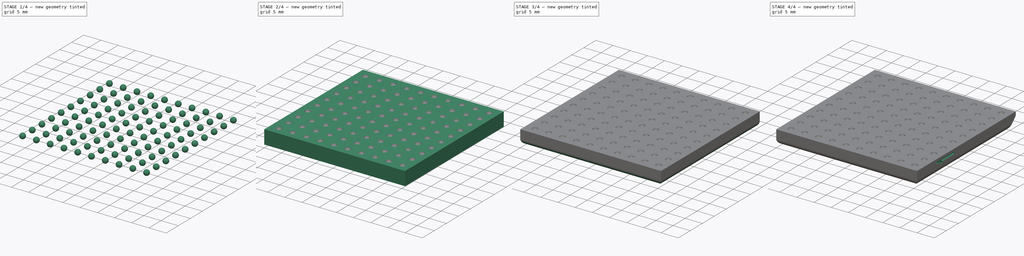
[diagram: build sequence overview — one tinted view per stage of 4, left to right]
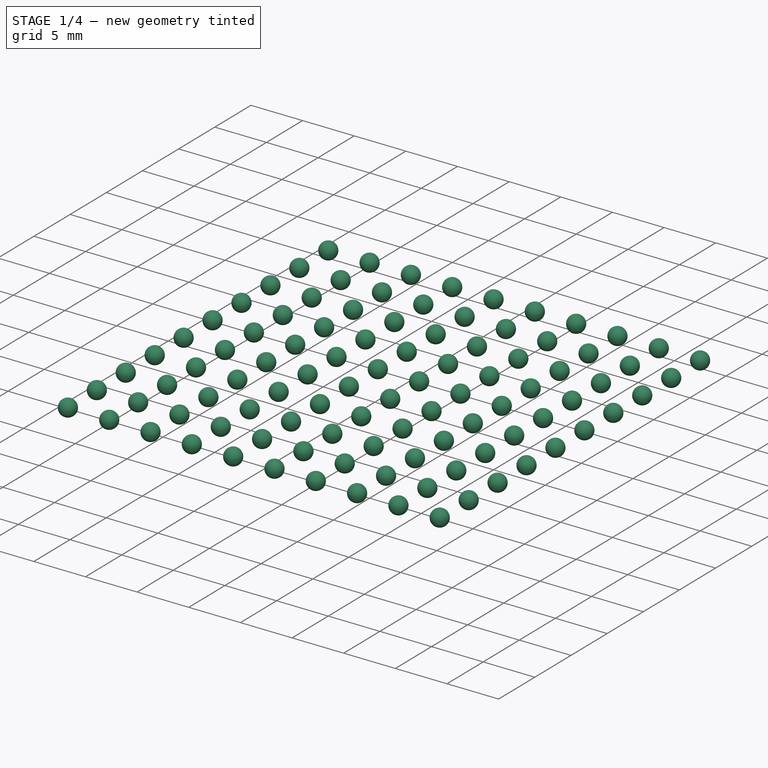
[diagram: stage 1 of 4 — iso view after this stage's code; geometry added in this stage tinted green]
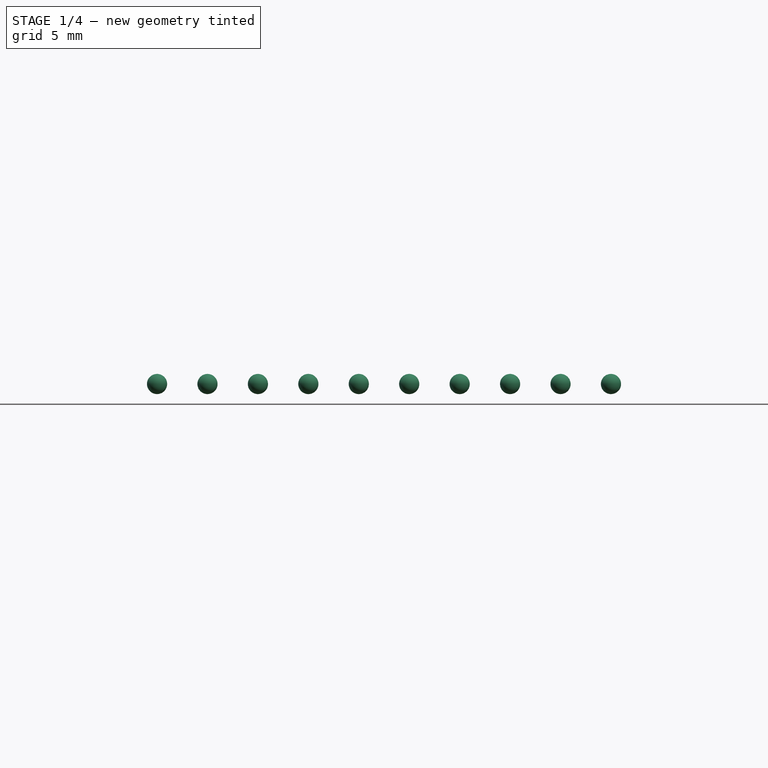
[diagram: stage 1 of 4 — front view after this stage's code; geometry added in this stage tinted green]
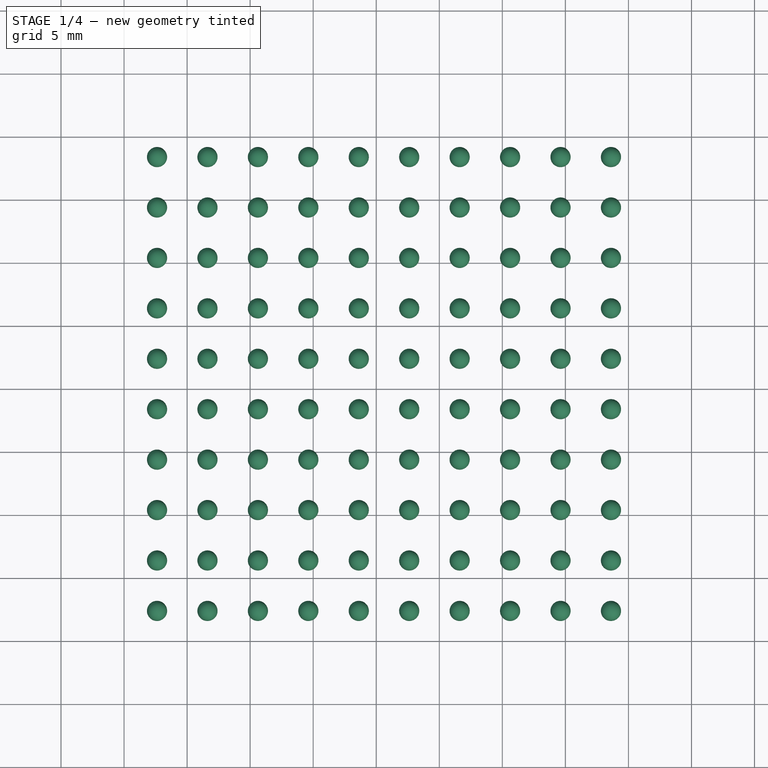
[diagram: stage 1 of 4 — top view after this stage's code; geometry added in this stage tinted green]
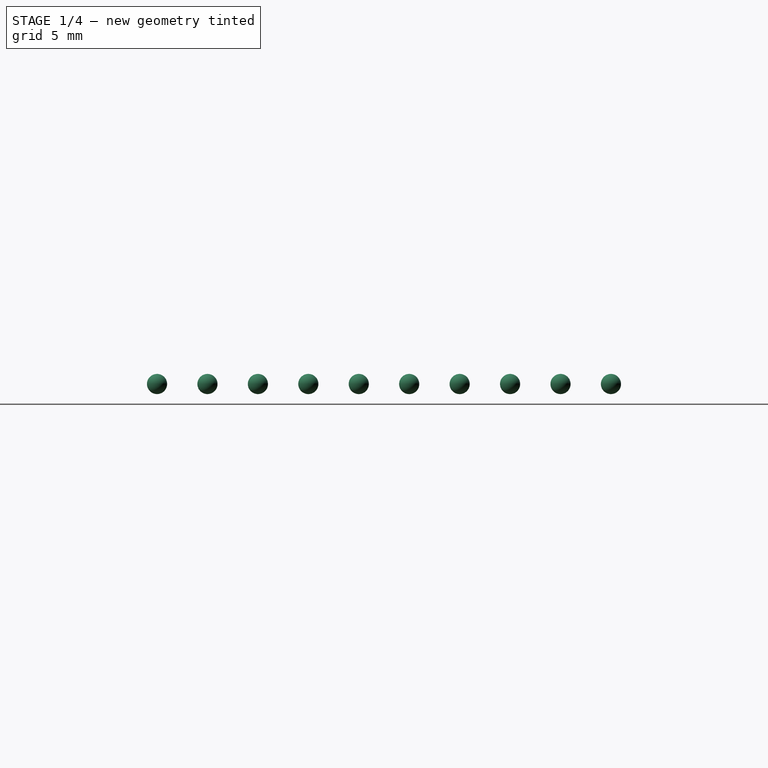
[diagram: stage 1 of 4 — right view after this stage's code; geometry added in this stage tinted green]
FCSTD DOCUMENT  (FreeCAD 0.16R6707 (Git))
Label: bxgr_optskin02_mold_c-v3
License: All rights reserved
LicenseURL: http://en.wikipedia.org/wiki/All_rights_reserved
objects: Sketcher::SketchObject×5, PartDesign::Pocket×4, PartDesign::Pad×1, Part::Sphere×1, Part::FeaturePython×1, Part::Cut×1, Part::Fillet×1
note: 19 computed .brp shape members not serialized (recipe doc carries the construction recipe); baked Part::Feature solids carry a one-line shape summary decoded from their .brp

FEATURE [Part::Sphere] Sphere  label="sphere"
  Angle1 = -90
  Angle2 = 90
  Angle3 = 360
  Placement = pos=(4.11475,38.8982,4.12122) rot=(0,0,1;0rad)
  Radius = 0.8
FEATURE [Part::FeaturePython] Array  # Draft array (typed FeaturePython)
  Angle = 360
  ArrayType = 0
  Axis = (0,0,1)
  Base = -> Sphere
  Center = (0,0,0)
  Fuse = false
  IntervalAxis = (0,0,0)
  IntervalX = (4,0,0)
  IntervalY = (0,4,0)
  IntervalZ = (0,0,0)
  NumberPolar = 1
  NumberX = 10
  NumberY = 10
  NumberZ = 1
  Placement = pos=(-1.5,-36.5,0) rot=(0,0,1;0rad)
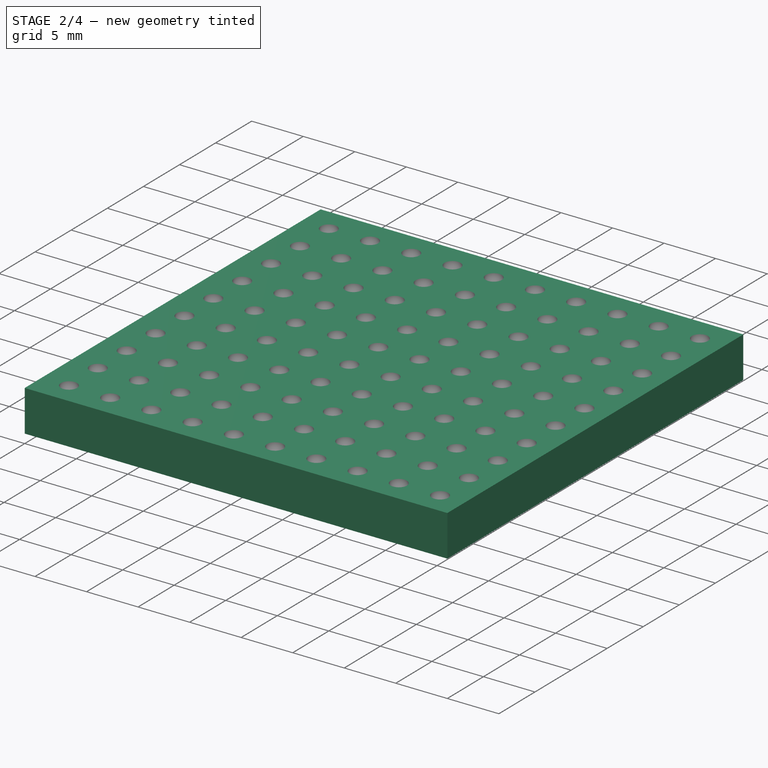
[diagram: stage 2 of 4 — iso view after this stage's code; geometry added in this stage tinted green]
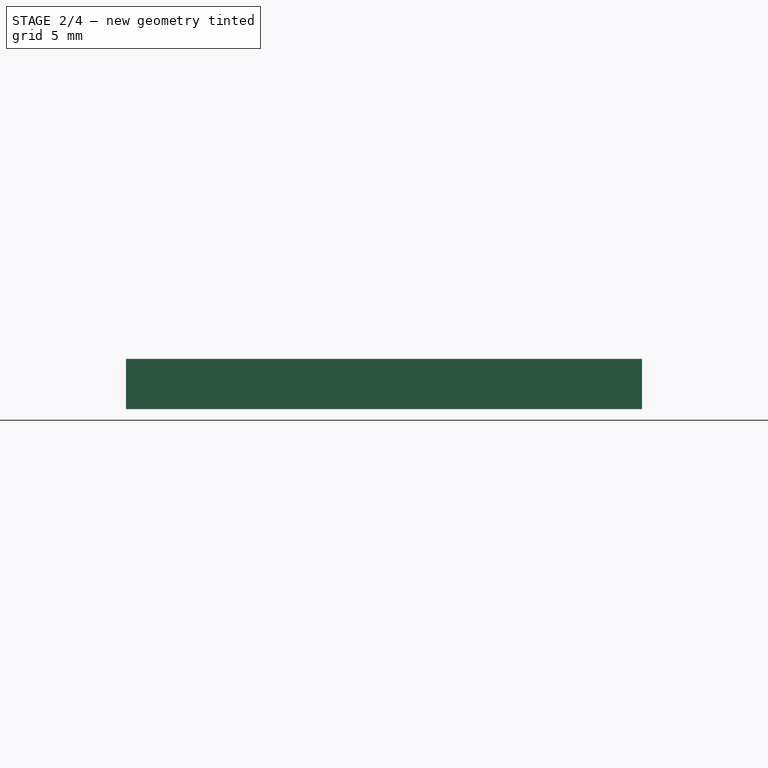
[diagram: stage 2 of 4 — front view after this stage's code; geometry added in this stage tinted green]
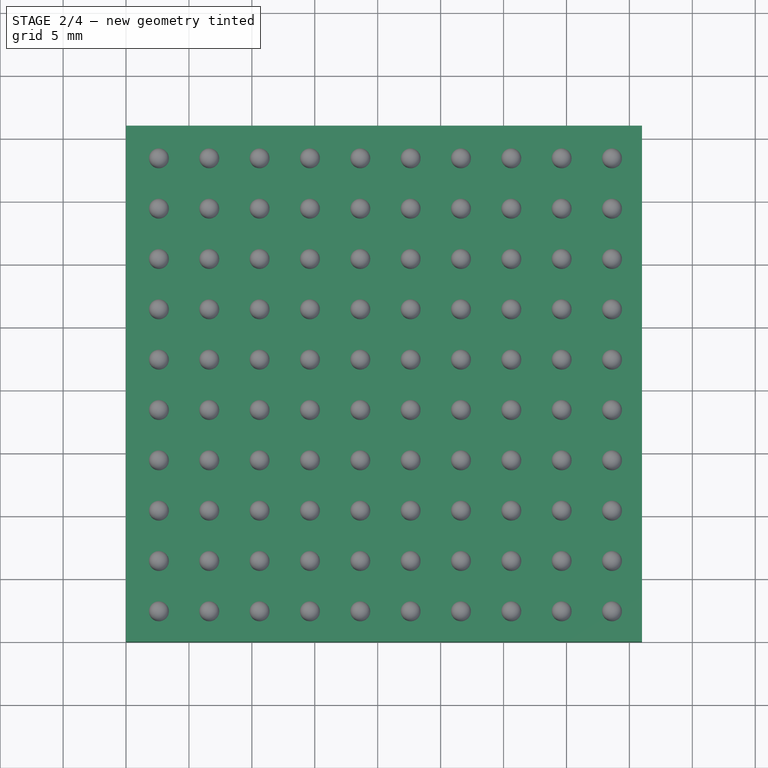
[diagram: stage 2 of 4 — top view after this stage's code; geometry added in this stage tinted green]
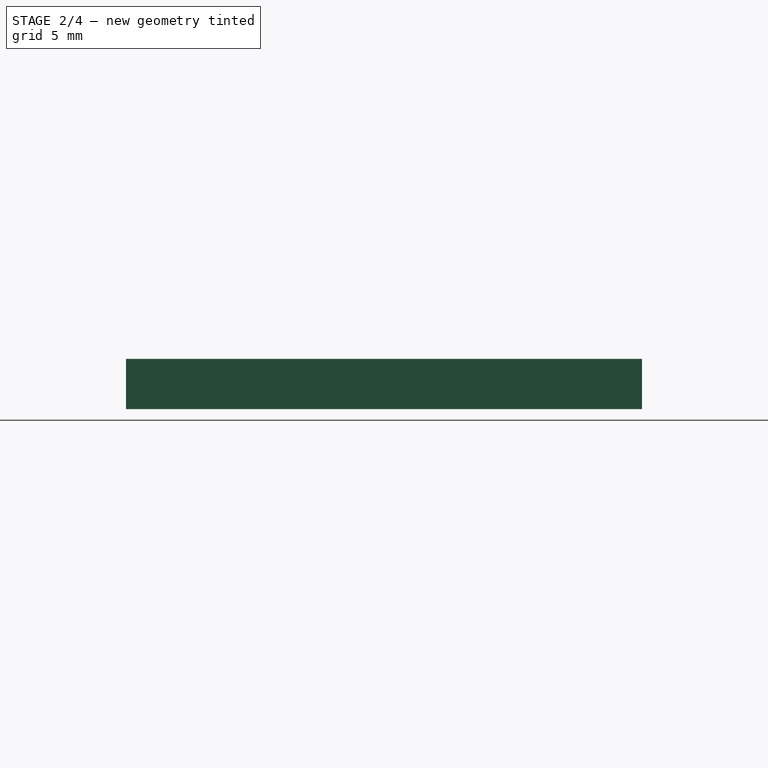
[diagram: stage 2 of 4 — right view after this stage's code; geometry added in this stage tinted green]
FEATURE [Sketcher::SketchObject] Sketch001
  sketch-geometry (4):
    g0: LineSegment StartX=0 StartY=0 StartZ=0 EndX=41 EndY=0 EndZ=0
    g1: LineSegment StartX=41 StartY=0 StartZ=0 EndX=41 EndY=41 EndZ=0
    g2: LineSegment StartX=41 StartY=41 StartZ=0 EndX=0 EndY=41 EndZ=0
    g3: LineSegment StartX=0 StartY=41 StartZ=0 EndX=0 EndY=0 EndZ=0
  constraints (11):
    c: Coincident(g0,g1)
    c: Coincident(g1,g2)
    c: Coincident(g2,g3)
    c: Coincident(g3,g0)
    c: Horizontal(g0)
    c: Horizontal(g2)
    c: Vertical(g1)
    c: Vertical(g3)
    c: DistanceY(g0,g1) = 41
    c: DistanceX(g2,g1) = 41
    c: Coincident(g0,g-1)
FEATURE [PartDesign::Pad] Pad
  Length = 4
  Length2 = 100
  Sketch = -> Sketch001
  Type = 0
FEATURE [Part::Cut] Cut
  Base = -> Pad
  Tool = -> Array
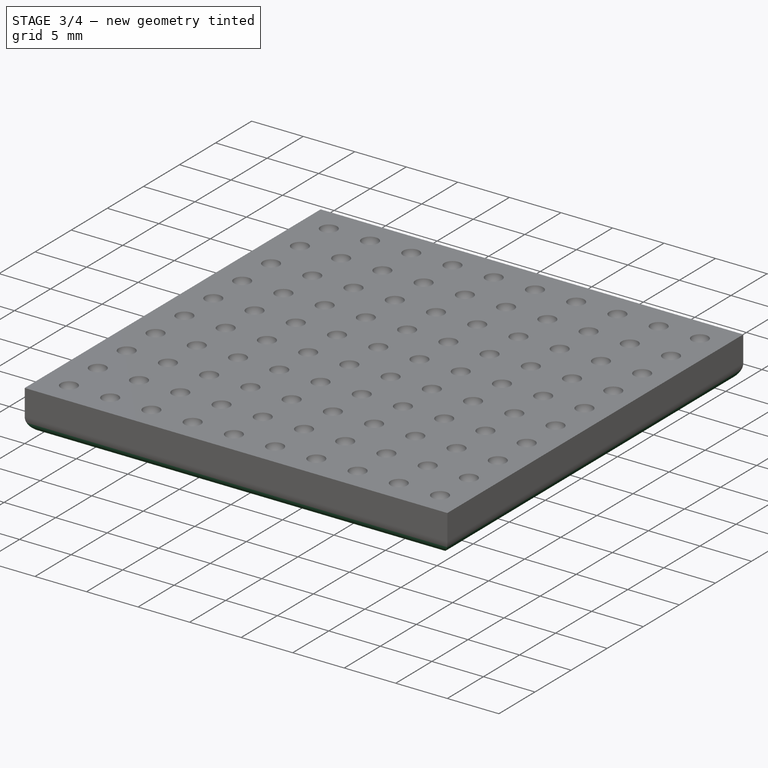
[diagram: stage 3 of 4 — iso view after this stage's code; geometry added in this stage tinted green]
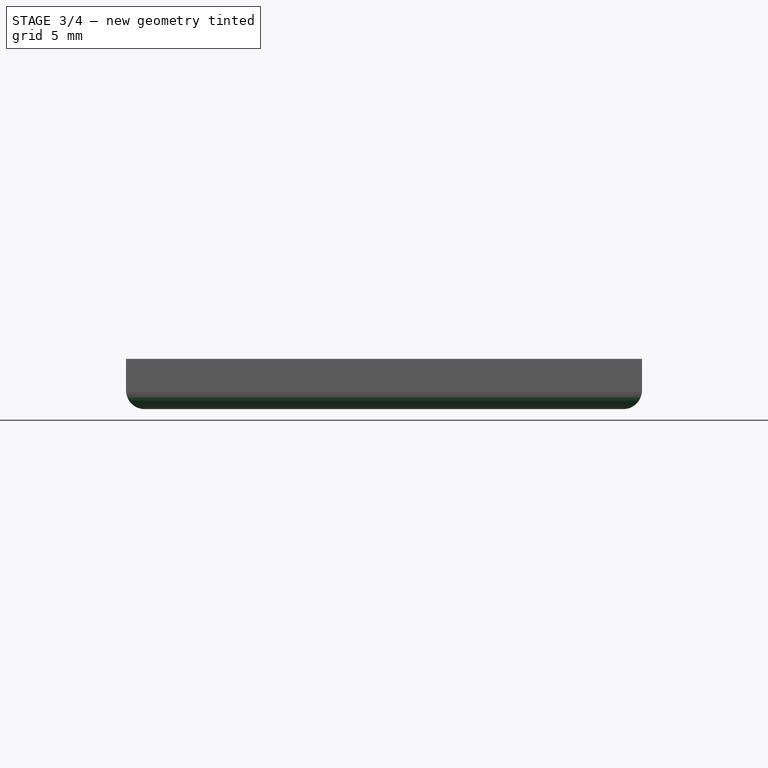
[diagram: stage 3 of 4 — front view after this stage's code; geometry added in this stage tinted green]
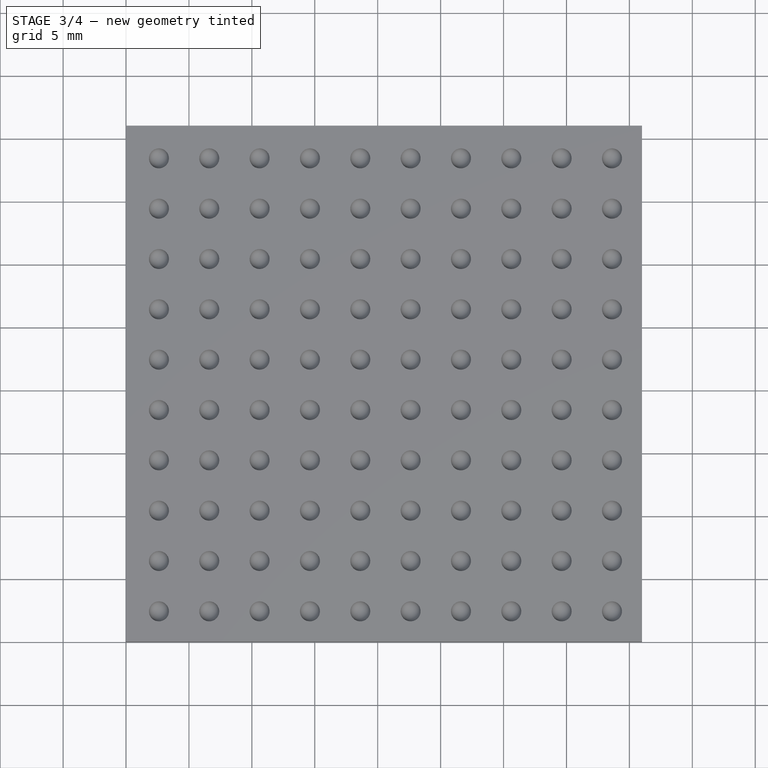
[diagram: stage 3 of 4 — top view after this stage's code; geometry added in this stage tinted green]
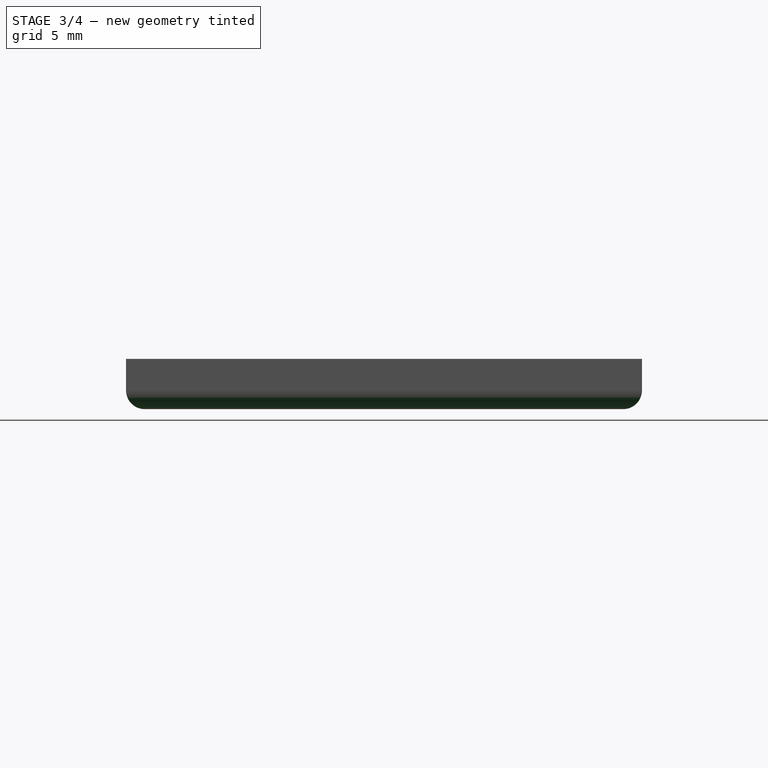
[diagram: stage 3 of 4 — right view after this stage's code; geometry added in this stage tinted green]
FEATURE [Part::Fillet] Fillet
  Base = -> Cut
  Edges = 4 edges r=1.5: [Edge3,Edge6,Edge9,Edge11]
FEATURE [Sketcher::SketchObject] Sketch
  ExternalGeometry = -> [Fillet]
  Placement = pos=(0,0,0) rot=(1,0,0;3.14159rad)
  Support = -> Fillet [Face8]
  sketch-geometry (7):
    g0: LineSegment StartX=22.5 StartY=-6 StartZ=0 EndX=15.5335 EndY=-11.1301 EndZ=0
    g1: LineSegment StartX=15.5335 StartY=-11.1301 StartZ=0 EndX=20.0765 EndY=-11.1301 EndZ=0
    g2: LineSegment StartX=20.0765 StartY=-11.1301 StartZ=0 EndX=20.0765 EndY=-16.1301 EndZ=0
    g3: LineSegment StartX=20.0765 StartY=-16.1301 StartZ=0 EndX=24.9235 EndY=-16.1301 EndZ=0
    g4: LineSegment StartX=24.9235 StartY=-16.1301 StartZ=0 EndX=24.9235 EndY=-11.1301 EndZ=0
    g5: LineSegment StartX=24.9235 StartY=-11.1301 StartZ=0 EndX=29.4665 EndY=-11.1301 EndZ=0
    g6: LineSegment StartX=29.4665 StartY=-11.1301 StartZ=0 EndX=22.5 EndY=-6 EndZ=0
  constraints (18):
    c: Coincident(g0,g1)
    c: Horizontal(g1)
    c: Coincident(g1,g2)
    c: Vertical(g2)
    c: Coincident(g2,g3)
    c: Coincident(g3,g4)
    c: Vertical(g4)
    c: Coincident(g4,g5)
    c: Horizontal(g5)
    c: Coincident(g5,g6)
    c: Coincident(g6,g0)
    c: DistanceX(g-1,g0) = 22.5
    c: DistanceY(g0,g-1) = 6
    c: Equal(g1,g5)
    c: DistanceY(g1,g4) = 0
    c: Horizontal(g3)
    c: DistanceY(g2,g1) = 5
    c: Equal(g6,g0)
FEATURE [PartDesign::Pocket] Pocket
  Length = 0.5
  Sketch = -> Sketch
  Type = 0
FEATURE [Sketcher::SketchObject] Sketch002
  Placement = pos=(0,0,0) rot=(0.57735,-0.57735,-0.57735;2.0944rad)
  Support = -> Pocket [Face2]
  sketch-geometry (5):
    g0: LineSegment StartX=-16.6584 StartY=3.17502 StartZ=0 EndX=-8.35131 EndY=3.17502 EndZ=0
    g1: LineSegment StartX=-8.35131 StartY=3.17502 StartZ=0 EndX=-11.5979 EndY=2.00233 EndZ=0
    g2: LineSegment StartX=-11.5979 StartY=2.00233 StartZ=0 EndX=-11.5979 EndY=2.58223 EndZ=0
    g3: LineSegment StartX=-11.5979 StartY=2.58223 StartZ=0 EndX=-16.6584 EndY=2.58223 EndZ=0
    g4: LineSegment StartX=-16.6584 StartY=2.58223 StartZ=0 EndX=-16.6584 EndY=3.17502 EndZ=0
  constraints (9):
    c: Horizontal(g0)
    c: Coincident(g0,g1)
    c: Coincident(g1,g2)
    c: Vertical(g2)
    c: Coincident(g2,g3)
    c: Horizontal(g3)
    c: Coincident(g3,g4)
    c: Coincident(g4,g0)
    c: Vertical(g4)
FEATURE [PartDesign::Pocket] Pocket001
  Length = 0.5
  Sketch = -> Sketch002
  Type = 0
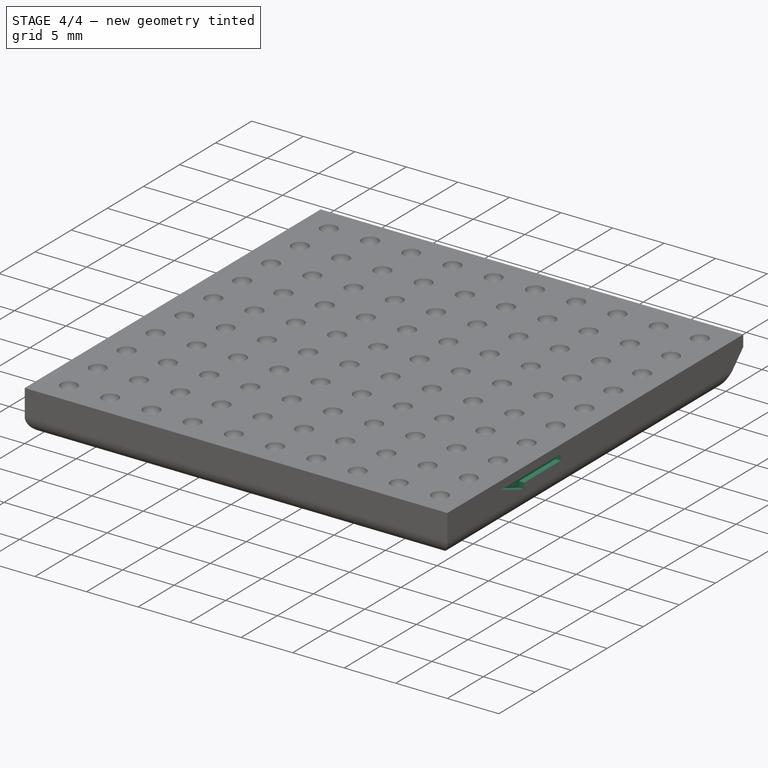
[diagram: stage 4 of 4 — iso view after this stage's code; geometry added in this stage tinted green]
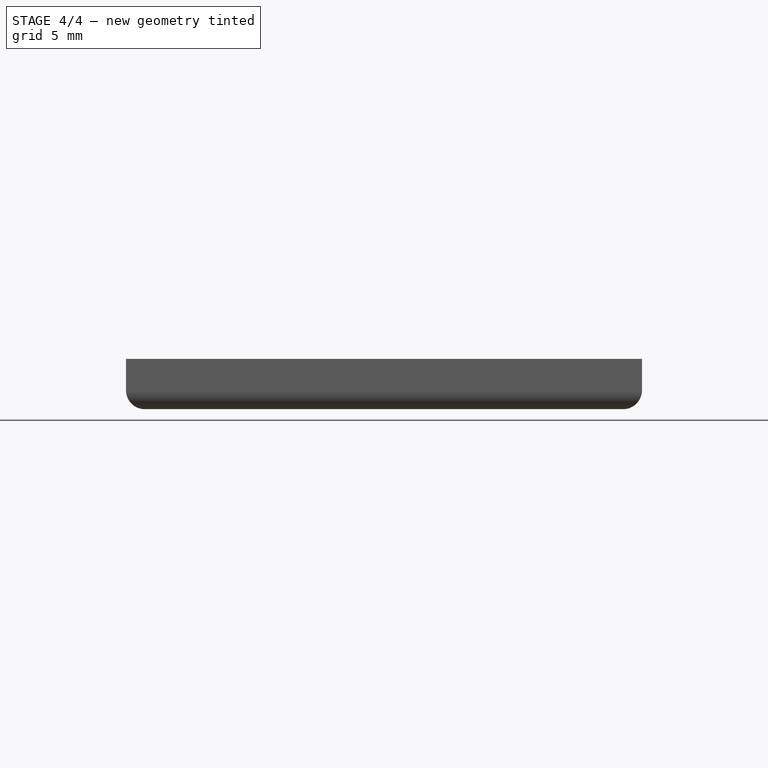
[diagram: stage 4 of 4 — front view after this stage's code; geometry added in this stage tinted green]
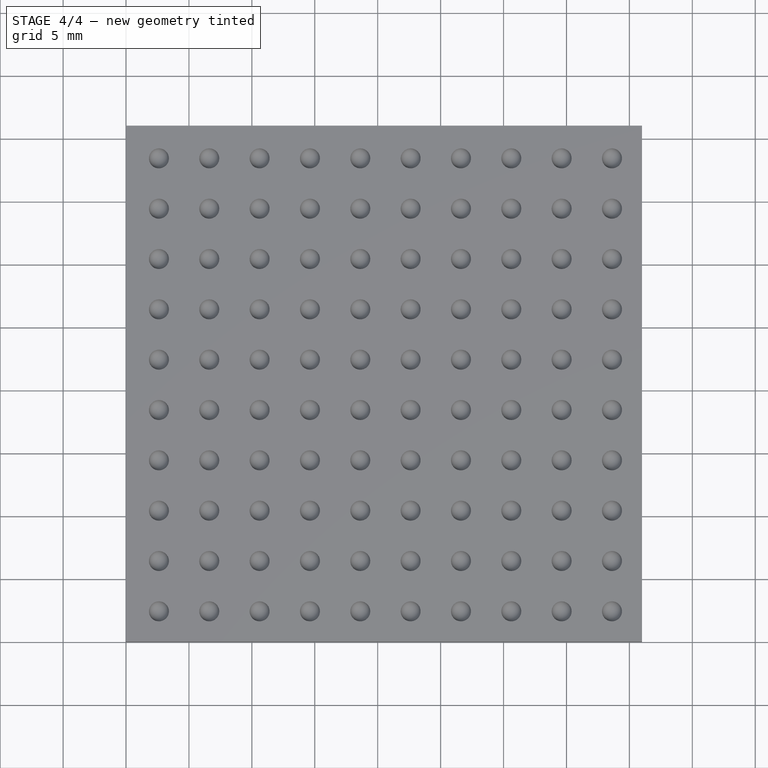
[diagram: stage 4 of 4 — top view after this stage's code; geometry added in this stage tinted green]
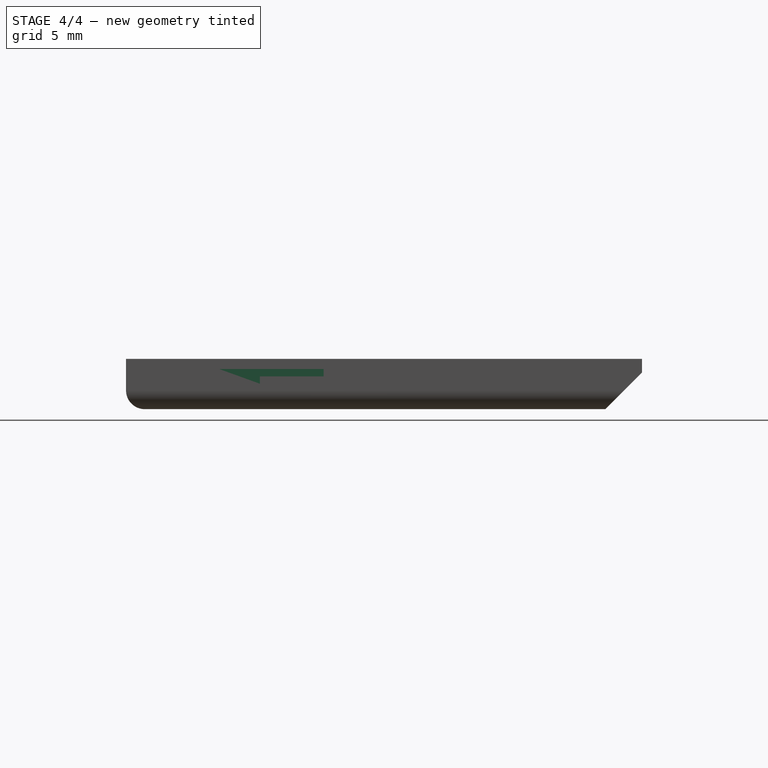
[diagram: stage 4 of 4 — right view after this stage's code; geometry added in this stage tinted green]
FEATURE [Sketcher::SketchObject] Sketch003
  Placement = pos=(41,0,0) rot=(0.57735,0.57735,0.57735;2.0944rad)
  Support = -> Pocket001 [Face5]
  sketch-geometry (5):
    g0: LineSegment StartX=15.7008 StartY=2.60224 StartZ=0 EndX=15.7008 EndY=3.19503 EndZ=0
    g1: LineSegment StartX=15.7008 StartY=3.19503 StartZ=0 EndX=7.39378 EndY=3.19503 EndZ=0
    g2: LineSegment StartX=7.39378 StartY=3.19503 StartZ=0 EndX=10.6404 EndY=2.02234 EndZ=0
    g3: LineSegment StartX=10.6404 StartY=2.02234 StartZ=0 EndX=10.6404 EndY=2.60224 EndZ=0
    g4: LineSegment StartX=10.6404 StartY=2.60224 StartZ=0 EndX=15.7008 EndY=2.60224 EndZ=0
  constraints (13):
    c: Vertical(g0)
    c: Horizontal(g1)
    c: Coincident(g1,g2)
    c: Coincident(g2,g3)
    c: Vertical(g3)
    c: Coincident(g3,g4)
    c: Horizontal(g4)
    c: DistanceX(g1,g0) = 8.30707
    c: DistanceX(g3,g0) = 5.06045
    c: DistanceY(g2,g3) = 0.579898
    c: Coincident(g0,g1)
    c: Coincident(g0,g4)
    c: DistanceY(g0,g0) = 0.59279
FEATURE [PartDesign::Pocket] Pocket002
  Length = 0.5
  Sketch = -> Sketch003
  Type = 0
FEATURE [Sketcher::SketchObject] Sketch004
  Placement = pos=(41,0,0) rot=(0.57735,0.57735,0.57735;2.0944rad)
  Support = -> Pocket002 [Face5]
  sketch-geometry (3):
    g0: LineSegment StartX=41.5136 StartY=3.42609 StartZ=0 EndX=37.6212 EndY=-0.466317 EndZ=0
    g1: LineSegment StartX=37.6212 StartY=-0.466317 StartZ=0 EndX=41.5136 EndY=-0.466317 EndZ=0
    g2: LineSegment StartX=41.5136 StartY=-0.466317 StartZ=0 EndX=41.5136 EndY=3.42609 EndZ=0
  constraints (6):
    c: Coincident(g0,g1)
    c: Horizontal(g1)
    c: Coincident(g1,g2)
    c: Coincident(g2,g0)
    c: Vertical(g2)
    c: Equal(g1,g2)
FEATURE [PartDesign::Pocket] Pocket003
  Length = 45
  Sketch = -> Sketch004
  Type = 0
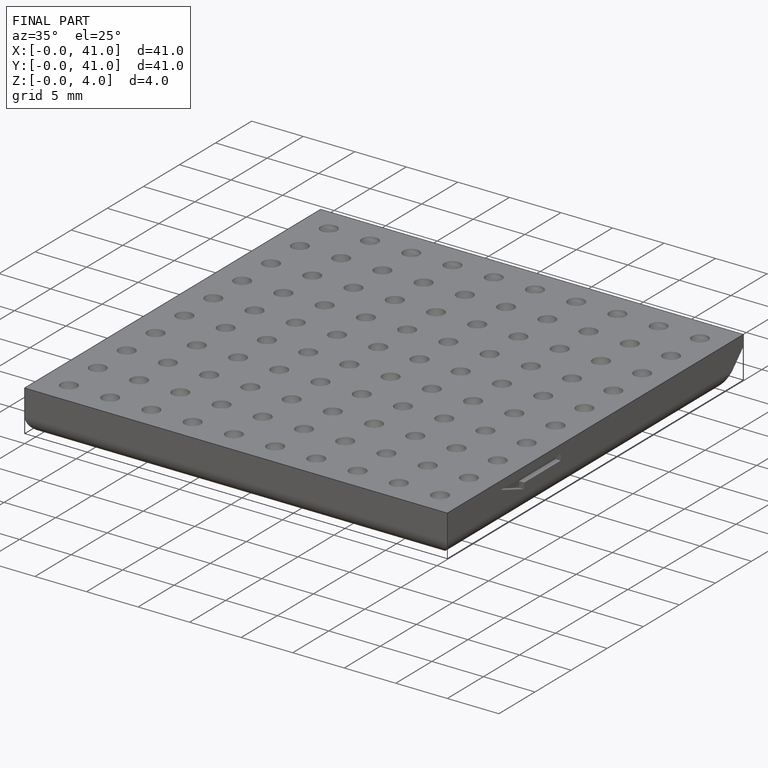
[diagram: finished part — iso view with bounding-box wireframe]
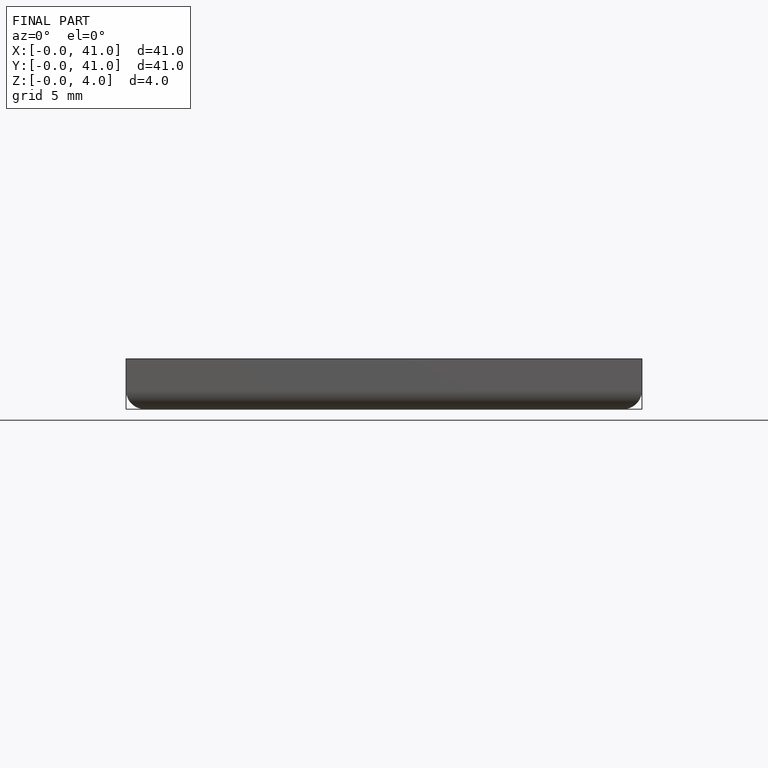
[diagram: finished part — front view with bounding-box wireframe]
